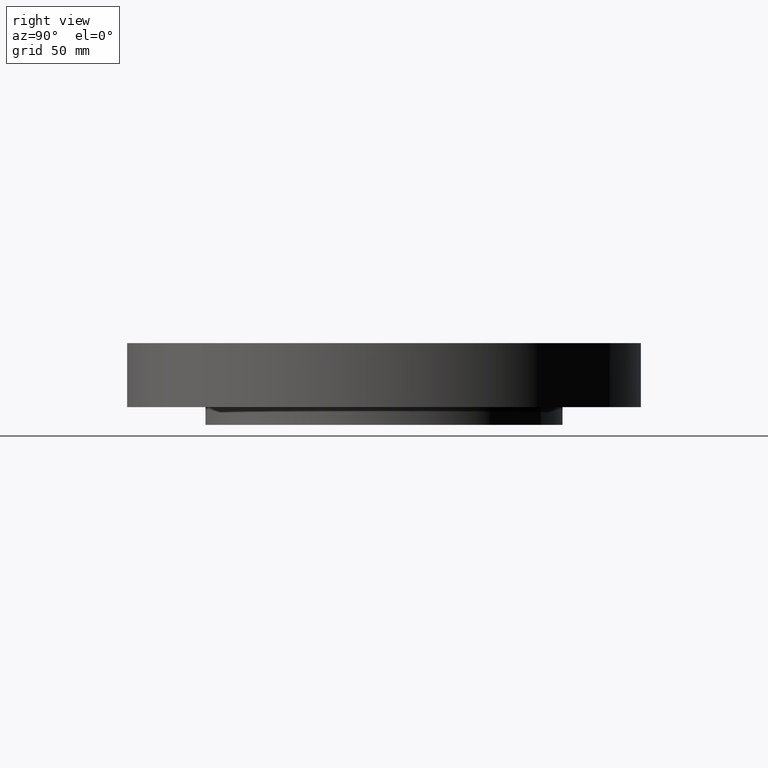
[diagram: clean part render]
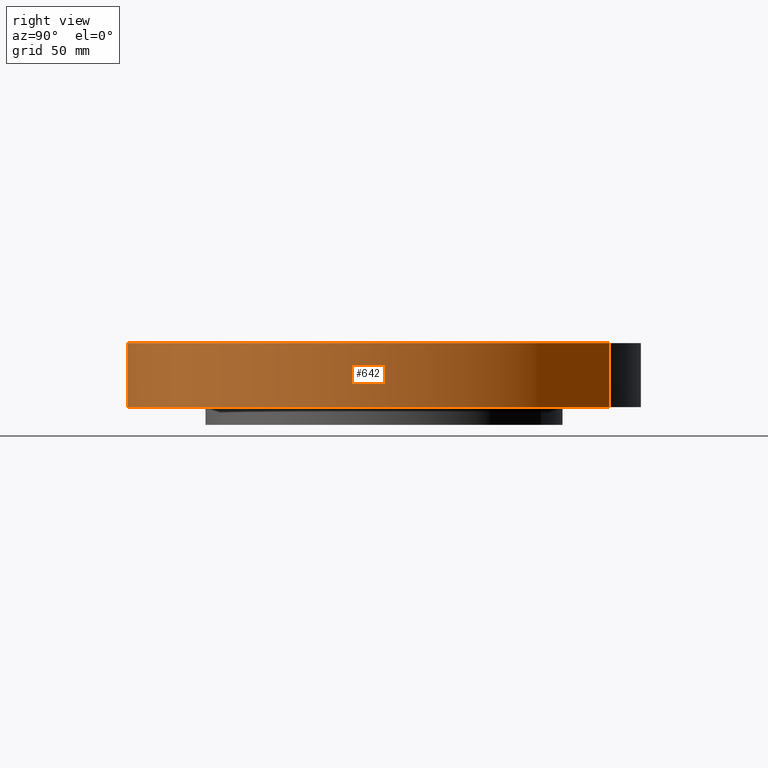
[diagram: same view with one face highlighted and labeled with its STEP entity id]
A machine part, right view. The second image highlights one B-rep face of the part: STEP entity #642.
In plain terms, the highlighted cylindrical surface (partial cylindrical patch) has radius 114.3 mm, axis along (0, 0, -1).
Its self-contained STEP definition (entity closure, byte-faithful):
#511=AXIS2_PLACEMENT_3D('Circle Axis2P3D',#509,#510,$) ;
#615=AXIS2_PLACEMENT_3D('Cylinder Axis2P3D',#612,#613,#614) ;
#626=AXIS2_PLACEMENT_3D('Circle Axis2P3D',#624,#625,$) ;
#504=CARTESIAN_POINT('Vertex',(-2.15741492373,-3.94912152852,4.19611851827E-016)) ;
#506=CARTESIAN_POINT('Vertex',(2.15741492373,3.94912152852,4.19611851827E-016)) ;
#509=CARTESIAN_POINT('Axis2P3D Location',(0.,0.,0.)) ;
#612=CARTESIAN_POINT('Axis2P3D Location',(0.,0.,0.403750000002)) ;
#617=CARTESIAN_POINT('Line Origine',(2.15741492373,3.94912152852,0.560000000002)) ;
#621=CARTESIAN_POINT('Vertex',(2.15741492373,3.94912152852,1.12)) ;
#624=CARTESIAN_POINT('Axis2P3D Location',(0.,0.,1.12)) ;
#628=CARTESIAN_POINT('Vertex',(-2.15741492373,-3.94912152852,1.12)) ;
#631=CARTESIAN_POINT('Line Origine',(-2.15741492373,-3.94912152852,0.560000000002)) ;
#510=DIRECTION('Axis2P3D Direction',(0.,0.,-0.0393700787402)) ;
#613=DIRECTION('Axis2P3D Direction',(0.,0.,-0.0393700787402)) ;
#614=DIRECTION('Axis2P3D XDirection',(-0.0188750212049,-0.0345504945626,0.)) ;
#618=DIRECTION('Vector Direction',(0.,0.,-0.0393700787402)) ;
#625=DIRECTION('Axis2P3D Direction',(0.,0.,-0.0393700787402)) ;
#632=DIRECTION('Vector Direction',(0.,0.,-0.0393700787402)) ;
#619=VECTOR('Line Direction',#618,0.0393700787402) ;
#633=VECTOR('Line Direction',#632,0.0393700787402) ;
#637=ORIENTED_EDGE('',*,*,#513,.F.) ;
#638=ORIENTED_EDGE('',*,*,#623,.T.) ;
#639=ORIENTED_EDGE('',*,*,#630,.T.) ;
#640=ORIENTED_EDGE('',*,*,#635,.F.) ;
#642=ADVANCED_FACE('PartBody',(#641),#616,.T.) ;
#512=CIRCLE('generated circle',#511,4.50000000002) ;
#627=CIRCLE('generated circle',#626,4.50000000002) ;
#616=CYLINDRICAL_SURFACE('generated cylinder',#615,4.50000000002) ;
#513=EDGE_CURVE('',#507,#505,#512,.T.) ;
#623=EDGE_CURVE('',#507,#622,#620,.F.) ;
#630=EDGE_CURVE('',#622,#629,#627,.T.) ;
#635=EDGE_CURVE('',#505,#629,#634,.F.) ;
#636=EDGE_LOOP('',(#637,#638,#639,#640)) ;
#641=FACE_OUTER_BOUND('',#636,.T.) ;
#620=LINE('Line',#617,#619) ;
#634=LINE('Line',#631,#633) ;
#505=VERTEX_POINT('',#504) ;
#507=VERTEX_POINT('',#506) ;
#622=VERTEX_POINT('',#621) ;
#629=VERTEX_POINT('',#628) ;